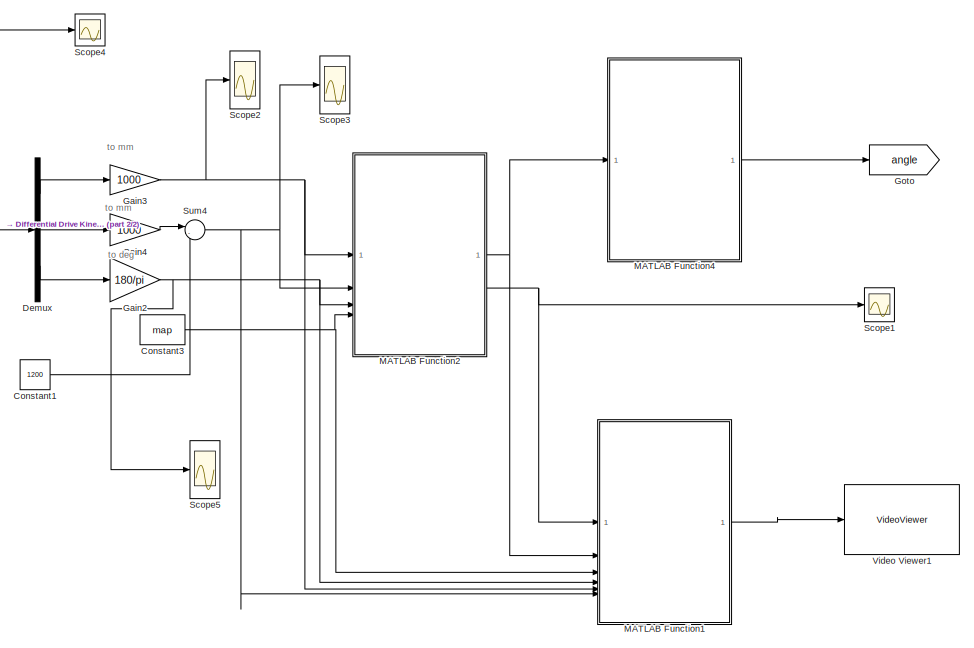
[diagram: root canvas - part 1/2, right side, full height]
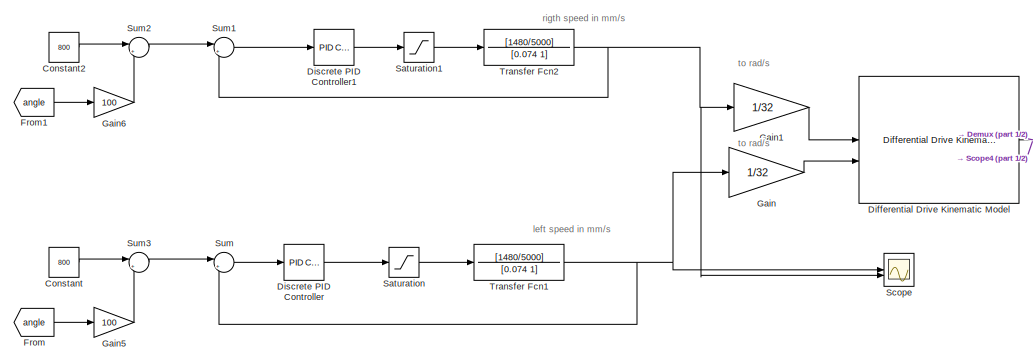
[diagram: root canvas - part 2/2, middle left region]
MODEL slx_b3c19fb2db46
KIND model
CONFIG AbsTol = auto
CONFIG EnableMultiTasking = off
CONFIG FixedStep = auto
CONFIG MaxStep = auto
CONFIG MinStep = auto
CONFIG RelTol = 1e-3
CONFIG SampleTimeConstraint = Unconstrained
CONFIG SolverName = VariableStepAuto
CONFIG StartTime = 0.0
CONFIG StopTime = 10.0
BLOCK [Constant] Constant
  Value = 800
BLOCK [Constant] Constant1
  Value = 1200
BLOCK [Constant] Constant2
  Value = 800
BLOCK [Constant] Constant3
  Value = map
BLOCK [Demux] Demux
  Outputs = 3
BLOCK [Reference] Differential Drive Kinematic Model  REF=robotmobilelib/Differential Drive Kinematic Model
  SourceBlock = robotmobilelib/Differential Drive Kinematic Model
  SourceType = Differential Drive Kinematic Model
BLOCK [Reference] Discrete PID Controller  REF=slpidlib/PID Controller
  LibrarySourceBlock = simulink/Discrete/Discrete PID Controller
  SourceBlock = slpidlib/PID Controller
  SourceType = PID 1dof
BLOCK [Reference] Discrete PID Controller1  REF=slpidlib/PID Controller
  LibrarySourceBlock = simulink/Discrete/Discrete PID Controller
  SourceBlock = slpidlib/PID Controller
  SourceType = PID 1dof
BLOCK [From] From
  GotoTag = angle
BLOCK [From] From1
  GotoTag = angle
BLOCK [Gain] Gain
  Gain = 1/32
BLOCK [Gain] Gain1
  Gain = 1/32
BLOCK [Gain] Gain2
  Gain = 180/pi
BLOCK [Gain] Gain3
  Gain = 1000
BLOCK [Gain] Gain4
  Gain = 1000
BLOCK [Gain] Gain5
  Gain = 100
BLOCK [Gain] Gain6
  Gain = 100
BLOCK [Goto] Goto
  GotoTag = angle
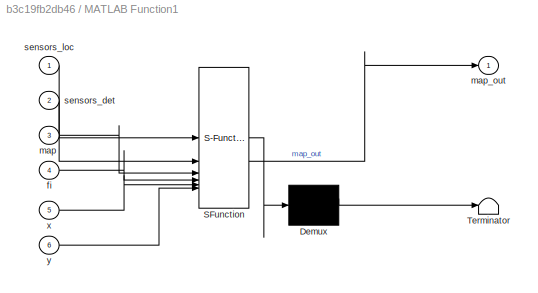
BLOCK [SubSystem] MATLAB Function1
  Commented = on
  ErrorFcn = Stateflow.Translate.translate
  LibrarySourceBlock = simulink/User-Defined\nFunctions/MATLAB Function
  PermitHierarchicalResolution = ExplicitOnly
  SFBlockType = MATLAB Function
  TreatAsAtomicUnit = on
BLOCK [Demux] MATLAB Function1/ Demux 
  Outputs = 1
BLOCK [S-Function] MATLAB Function1/ SFunction 
  EnableBusSupport = on
  FunctionName = sf_sfun
  PortCounts = [6 2]
  SFcnIsStateOwnerBlock = off
  SFunctionDeploymentMode = off
  Tag = Stateflow S-Function 1
BLOCK [Terminator] MATLAB Function1/ Terminator 
BLOCK [Inport] MATLAB Function1/fi
  Port = 4
BLOCK [Inport] MATLAB Function1/map
  Port = 3
BLOCK [Outport] MATLAB Function1/map_out
BLOCK [Inport] MATLAB Function1/sensors_det
  Port = 2
BLOCK [Inport] MATLAB Function1/sensors_loc
BLOCK [Inport] MATLAB Function1/x
  Port = 5
BLOCK [Inport] MATLAB Function1/y
  Port = 6
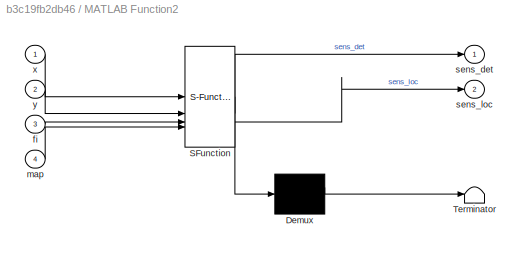
BLOCK [SubSystem] MATLAB Function2
  ErrorFcn = Stateflow.Translate.translate
  LibrarySourceBlock = simulink/User-Defined\nFunctions/MATLAB Function
  PermitHierarchicalResolution = ExplicitOnly
  SFBlockType = MATLAB Function
  TreatAsAtomicUnit = on
BLOCK [Demux] MATLAB Function2/ Demux 
  Outputs = 1
BLOCK [S-Function] MATLAB Function2/ SFunction 
  EnableBusSupport = on
  FunctionName = sf_sfun
  PortCounts = [4 3]
  SFcnIsStateOwnerBlock = off
  SFunctionDeploymentMode = off
  Tag = Stateflow S-Function 3
BLOCK [Terminator] MATLAB Function2/ Terminator 
BLOCK [Inport] MATLAB Function2/fi
  Port = 3
BLOCK [Inport] MATLAB Function2/map
  Port = 4
BLOCK [Outport] MATLAB Function2/sens_det
BLOCK [Outport] MATLAB Function2/sens_loc
  Port = 2
BLOCK [Inport] MATLAB Function2/x
BLOCK [Inport] MATLAB Function2/y
  Port = 2
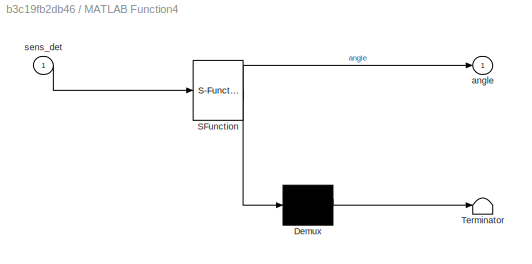
BLOCK [SubSystem] MATLAB Function4
  ErrorFcn = Stateflow.Translate.translate
  LibrarySourceBlock = simulink/User-Defined\nFunctions/MATLAB Function
  PermitHierarchicalResolution = ExplicitOnly
  SFBlockType = MATLAB Function
  TreatAsAtomicUnit = on
BLOCK [Demux] MATLAB Function4/ Demux 
  Outputs = 1
BLOCK [S-Function] MATLAB Function4/ SFunction 
  EnableBusSupport = on
  FunctionName = sf_sfun
  PortCounts = [1 2]
  SFcnIsStateOwnerBlock = off
  SFunctionDeploymentMode = off
  Tag = Stateflow S-Function 2
BLOCK [Terminator] MATLAB Function4/ Terminator 
BLOCK [Outport] MATLAB Function4/angle
BLOCK [Inport] MATLAB Function4/sens_det
BLOCK [Saturate] Saturation
  LowerLimit = -10000
  UpperLimit = 10000
BLOCK [Saturate] Saturation1
  LowerLimit = -10000
  UpperLimit = 10000
BLOCK [Scope] Scope
  Floating = off
  NumInputPorts = 2
  ScopeSpecificationString = Simulink.scopes.TimeScopeBlockCfg('CurrentConfiguration', extmgr.ConfigurationSet(extmgr.Configuration('Core','General UI',true),extmgr.Configuration('Core','Source UI',true),extmgr.Configuration('Sources','WiredSimulink',true),extmgr.Configuration('Visuals','Time Domain',true,'SerializedDisplays',{struct('MinYLimReal','-162.5','MaxYLimReal','1462.5','YLabelReal','','MinYLimMag',' 0.00000','MaxYLi...<+1371ch>
BLOCK [Scope] Scope1
  Floating = off
  NumInputPorts = 1
  ScopeSpecificationString = Simulink.scopes.TimeScopeBlockCfg('CurrentConfiguration', extmgr.ConfigurationSet(extmgr.Configuration('Core','General UI',true),extmgr.Configuration('Core','Source UI',true),extmgr.Configuration('Sources','WiredSimulink',true,'DataLoggingVariableName','ScopeData1'),extmgr.Configuration('Visuals','Time Domain',true,'SerializedDisplays',{struct('MinYLimReal','298.75','MaxYLimReal','701.25','YLabelR...<+1986ch>
BLOCK [Scope] Scope2
  Floating = off
  NumInputPorts = 1
  ScopeSpecificationString = Simulink.scopes.TimeScopeBlockCfg('CurrentConfiguration', extmgr.ConfigurationSet(extmgr.Configuration('Core','General UI',true),extmgr.Configuration('Core','Source UI',true),extmgr.Configuration('Sources','WiredSimulink',true,'DataLoggingVariableName','ScopeData1'),extmgr.Configuration('Visuals','Time Domain',true,'SerializedDisplays',{struct('MinYLimReal','487.53805','MaxYLimReal','612.15758','Y...<+1480ch>
BLOCK [Scope] Scope3
  Floating = off
  NumInputPorts = 1
  ScopeSpecificationString = Simulink.scopes.TimeScopeBlockCfg('CurrentConfiguration', extmgr.ConfigurationSet(extmgr.Configuration('Core','General UI',true),extmgr.Configuration('Core','Source UI',true),extmgr.Configuration('Sources','WiredSimulink',true,'DataLoggingVariableName','ScopeData1'),extmgr.Configuration('Visuals','Time Domain',true,'SerializedDisplays',{struct('MinYLimReal','87.75845','MaxYLimReal','1699.70508','Y...<+1479ch>
BLOCK [Scope] Scope4
  Floating = off
  NumInputPorts = 1
  ScopeSpecificationString = Simulink.scopes.TimeScopeBlockCfg('CurrentConfiguration', extmgr.ConfigurationSet(extmgr.Configuration('Core','General UI',true),extmgr.Configuration('Core','Source UI',true),extmgr.Configuration('Sources','WiredSimulink',true,'DataLoggingVariableName','ScopeData4'),extmgr.Configuration('Visuals','Time Domain',true,'SerializedDisplays',{struct('MinYLimReal','-47.03106','MaxYLimReal','340.22568','Y...<+1588ch>
BLOCK [Scope] Scope5
  Floating = off
  NumInputPorts = 1
  ScopeSpecificationString = Simulink.scopes.TimeScopeBlockCfg('CurrentConfiguration', extmgr.ConfigurationSet(extmgr.Configuration('Core','General UI',true),extmgr.Configuration('Core','Source UI',true),extmgr.Configuration('Sources','WiredSimulink',true,'DataLoggingVariableName','ScopeData2'),extmgr.Configuration('Visuals','Time Domain',true,'SerializedDisplays',{struct('MinYLimReal','-245.3155','MaxYLimReal','947.20137','Y...<+1478ch>
BLOCK [Sum] Sum
  Inputs = |+-
BLOCK [Sum] Sum1
  Inputs = |+-
BLOCK [Sum] Sum2
  Inputs = |++
BLOCK [Sum] Sum3
  Inputs = |+-
BLOCK [Sum] Sum4
  Inputs = |-+
BLOCK [TransferFcn] Transfer Fcn1
  Denominator = [0.074 1]
  Numerator = [1480/5000]
BLOCK [TransferFcn] Transfer Fcn2
  Denominator = [0.074 1]
  Numerator = [1480/5000]
BLOCK [VideoViewer] Video Viewer1
  Commented = on
  FigPos = [-19 1039 1920 856]
  ScopeSpecificationString = vipscopes.VideoViewerScopeCfg('CurrentConfiguration', extmgr.ConfigurationSet(extmgr.Configuration('Core','General UI',true),extmgr.Configuration('Core','Source UI',true),extmgr.Configuration('Sources','WiredSimulink',true),extmgr.Configuration('Sources','SimulinkEvent',false),extmgr.Configuration('Sources','Simulink',false),extmgr.Configuration('Sources','File',false),extmgr.Configuration('Source...<+1675ch>
ANNOTATION (root): left speed in mm/s
ANNOTATION (root): rigth speed in mm/s
ANNOTATION (root): to deg
ANNOTATION (root): to mm
ANNOTATION (root): to rad/s
LINE Constant1:1 -> Sum4:2
LINE Constant2:1 -> Sum2:1
NET Constant3:1 -> MATLAB Function1:3, MATLAB Function2:4
LINE Constant:1 -> Sum3:1
LINE Demux:1 -> Gain3:1
LINE Demux:2 -> Gain4:1
LINE Demux:3 -> Gain2:1
NET Differential Drive Kinematic Model:1 -> Demux:1, Scope4:1
LINE Discrete PID Controller1:1 -> Saturation1:1
LINE Discrete PID Controller:1 -> Saturation:1
LINE From1:1 -> Gain6:1
LINE From:1 -> Gain5:1
LINE Gain1:1 -> Differential Drive Kinematic Model:1
NET Gain2:1 -> MATLAB Function1:4, MATLAB Function2:3, Scope5:1
NET Gain3:1 -> MATLAB Function1:5, MATLAB Function2:1, Scope2:1
LINE Gain4:1 -> Sum4:1
LINE Gain5:1 -> Sum3:2
LINE Gain6:1 -> Sum2:2
LINE Gain:1 -> Differential Drive Kinematic Model:2
LINE MATLAB Function1:1 -> Video Viewer1:1
NET MATLAB Function2:1 -> MATLAB Function1:2, MATLAB Function4:1
NET MATLAB Function2:2 -> MATLAB Function1:1, Scope1:1
LINE MATLAB Function4:1 -> Goto:1
LINE Saturation1:1 -> Transfer Fcn2:1
LINE Saturation:1 -> Transfer Fcn1:1
LINE Sum1:1 -> Discrete PID Controller1:1
LINE Sum2:1 -> Sum1:1
LINE Sum3:1 -> Sum:1
NET Sum4:1 -> MATLAB Function1:6, MATLAB Function2:2, Scope3:1
LINE Sum:1 -> Discrete PID Controller:1
NET Transfer Fcn1:1 -> Gain:1, Scope:1, Sum:2
NET Transfer Fcn2:1 -> Gain1:1, Scope:2, Sum1:2
note: NET lines group one-source signal fan-out (src -> all destinations, sorted); 1:1 wires keep LINE
CHART MATLAB Function1 states=1 transitions=1
  STATE_LABEL 'eML_blk_kernel()'
  STATE_LABEL 'SCRIPT:\nfunction map_out  = draw_robot(sensors_loc, sensors_det, map, fi,x ,y)\n\nmap_out = uint8(map)*255;\n\n\nrM = [cosd(fi), -sind(fi);\n      sind(fi),  cosd(fi)];\n\nwheel_left_v = [0, 50] * rM;\nwheel_right_v = [0, -50] * rM;\n\n\nsensors_loc = int32(sensors_loc);\nfor i = 1:10\n    if(sensors_det(i) == 1)\n        for j = -7:7\n            for k = -7:7\n                if ((j*j + k*k) < 36)\n               ...<+823ch>'
CHART MATLAB Function4 states=1 transitions=1
  STATE_LABEL 'eML_blk_kernel()'
  STATE_LABEL 'SCRIPT:\nfunction angle  = est_angle(sens_det)\nangle = 0;\nfor i=1:10\n    if(sens_det(i) == 1)\n        if(i <= 5)\n            angle = 5*(i-6);\n        else\n            angle = 5*(i-5);\n        end\n    end\nend\n\n\n'
CHART MATLAB Function2 states=1 transitions=1
  STATE_LABEL 'eML_blk_kernel()'
  STATE_LABEL 'SCRIPT:\nfunction [sens_det, sens_loc] = sensor_detec(x, y, fi, map)\nsensor_loc = [145 -71;\n              147, -59;\n              150, -41;\n              154, -25;\n              157, -12;\n              157, 12;\n              154, 25;\n              150, 41;\n              147, 59;\n              145, 71];\nrM = [cosd(fi), -sind(fi);\n      sind(fi),  cosd(fi)];\n\nsens_det = zeros(10);\nsens_rot = zeros([1...<+291ch>'
CHART  states=0 transitions=0
CHART  states=0 transitions=0
CHART  states=0 transitions=0
